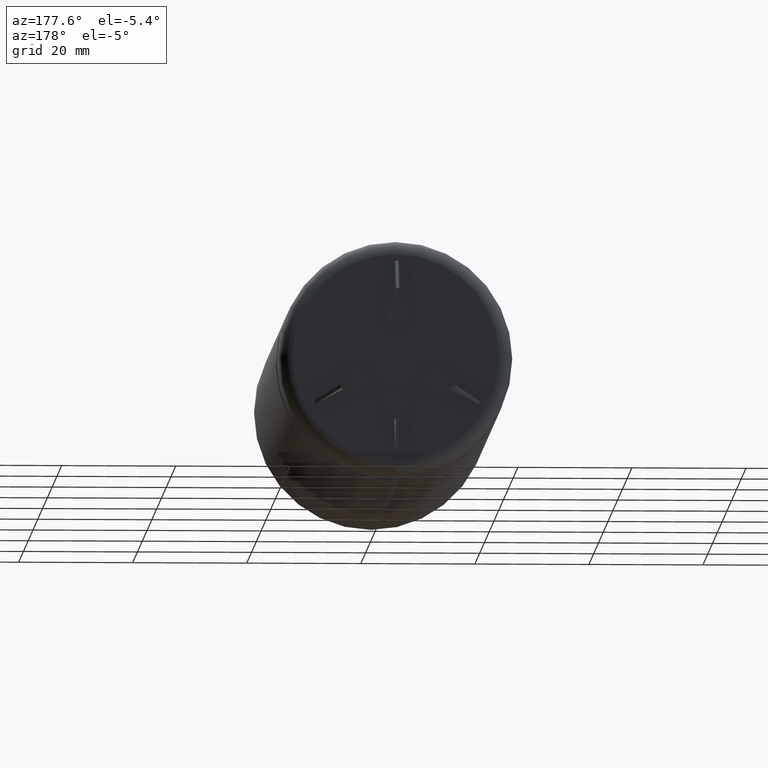
[diagram: clean part render]
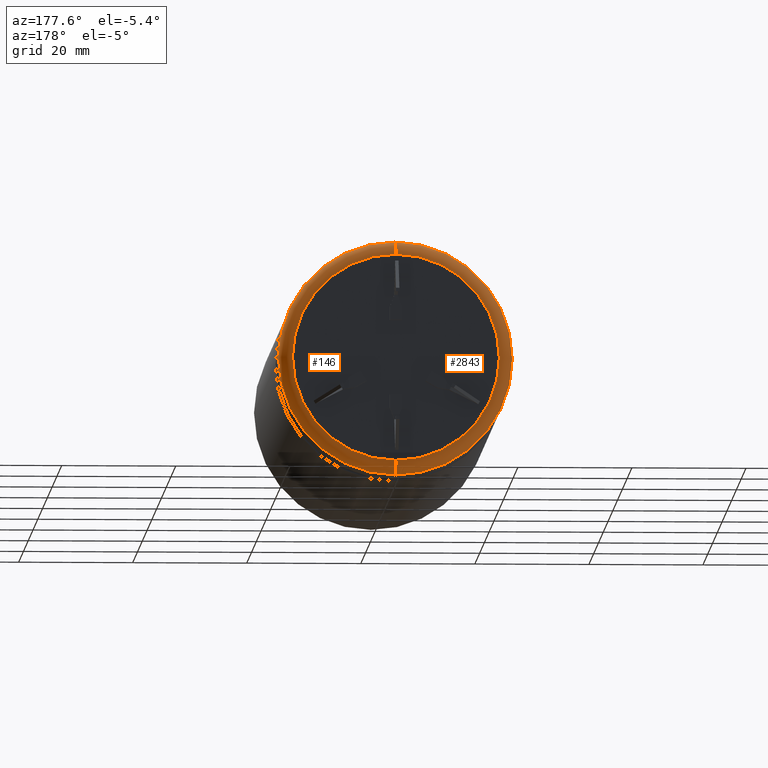
[diagram: same view with one multi-face feature highlighted, each face labeled with its STEP entity id]
A machine part, auxiliary view. The highlighted faces form ONE feature: a constant-radius fillet chain: 2 tangent blend faces with common blend radius 2.3616 mm. The faces share edges in the B-rep.
Their STEP definitions:
[1] entity #146 (Torus):
#146 = ADVANCED_FACE ( 'NONE', ( #1707 ), #1526, .T. ) ;
#175 = AXIS2_PLACEMENT_3D ( 'NONE', #545, #1696, #1346 ) ;
#377 = ORIENTED_EDGE ( 'NONE', *, *, #405, .F. ) ;
#405 = EDGE_CURVE ( 'NONE', #4133, #2544, #4634, .T. ) ;
#408 = CIRCLE ( 'NONE', #1308, 2.361599999999998400 ) ;
#545 = CARTESIAN_POINT ( 'NONE',  ( 2.221313350165435200E-015, 104.6383999999999900, -18.13839999999999700 ) ) ;
#669 = ORIENTED_EDGE ( 'NONE', *, *, #3263, .F. ) ;
#833 = DIRECTION ( 'NONE',  ( 0.0000000000000000000, 0.0000000000000000000, 1.000000000000000000 ) ) ;
#870 = AXIS2_PLACEMENT_3D ( 'NONE', #3249, #3941, #1787 ) ;
#1308 = AXIS2_PLACEMENT_3D ( 'NONE', #3535, #2043, #4169 ) ;
#1335 = DIRECTION ( 'NONE',  ( 0.0000000000000000000, 1.000000000000000000, 0.0000000000000000000 ) ) ;
#1346 = DIRECTION ( 'NONE',  ( 1.224646799147353700E-016, 0.0000000000000000000, -1.000000000000000000 ) ) ;
#1526 = TOROIDAL_SURFACE ( 'NONE', #3695, 18.13839999999999700, 2.361600000000000100 ) ;
#1696 = DIRECTION ( 'NONE',  ( 1.000000000000000000, -0.0000000000000000000, 1.224646799147353200E-016 ) ) ;
#1707 = FACE_OUTER_BOUND ( 'NONE', #2494, .T. ) ;
#1787 = DIRECTION ( 'NONE',  ( 0.0000000000000000000, 0.0000000000000000000, 1.000000000000000000 ) ) ;
#2017 = DIRECTION ( 'NONE',  ( 0.0000000000000000000, 0.0000000000000000000, 1.000000000000000000 ) ) ;
#2043 = DIRECTION ( 'NONE',  ( -1.000000000000000000, 0.0000000000000000000, 0.0000000000000000000 ) ) ;
#2265 = CARTESIAN_POINT ( 'NONE',  ( 2.510525938252074500E-015, 104.6383999999999900, 20.50000000000000000 ) ) ;
#2420 = CIRCLE ( 'NONE', #870, 20.50000000000000000 ) ;
#2494 = EDGE_LOOP ( 'NONE', ( #2802, #4267, #377, #669 ) ) ;
#2544 = VERTEX_POINT ( 'NONE', #3907 ) ;
#2580 = VERTEX_POINT ( 'NONE', #4202 ) ;
#2802 = ORIENTED_EDGE ( 'NONE', *, *, #3401, .F. ) ;
#2898 = EDGE_CURVE ( 'NONE', #2580, #2544, #4655, .T. ) ;
#2976 = DIRECTION ( 'NONE',  ( 0.0000000000000000000, 1.000000000000000000, 0.0000000000000000000 ) ) ;
#3249 = CARTESIAN_POINT ( 'NONE',  ( 0.0000000000000000000, 104.6383999999999900, 0.0000000000000000000 ) ) ;
#3263 = EDGE_CURVE ( 'NONE', #4014, #4133, #408, .T. ) ;
#3341 = CARTESIAN_POINT ( 'NONE',  ( 0.0000000000000000000, 104.6383999999999900, 0.0000000000000000000 ) ) ;
#3401 = EDGE_CURVE ( 'NONE', #2580, #4014, #2420, .T. ) ;
#3500 = CARTESIAN_POINT ( 'NONE',  ( 0.0000000000000000000, 107.0000000000000000, 0.0000000000000000000 ) ) ;
#3535 = CARTESIAN_POINT ( 'NONE',  ( 0.0000000000000000000, 104.6383999999999900, 18.13839999999999700 ) ) ;
#3695 = AXIS2_PLACEMENT_3D ( 'NONE', #3341, #2976, #833 ) ;
#3893 = CARTESIAN_POINT ( 'NONE',  ( 0.0000000000000000000, 107.0000000000000000, 18.13839999999999700 ) ) ;
#3907 = CARTESIAN_POINT ( 'NONE',  ( 2.365919644208754400E-015, 107.0000000000000000, -18.13839999999999700 ) ) ;
#3941 = DIRECTION ( 'NONE',  ( -0.0000000000000000000, -1.000000000000000000, -0.0000000000000000000 ) ) ;
#4014 = VERTEX_POINT ( 'NONE', #2265 ) ;
#4133 = VERTEX_POINT ( 'NONE', #3893 ) ;
#4169 = DIRECTION ( 'NONE',  ( 0.0000000000000000000, 0.0000000000000000000, 1.000000000000000000 ) ) ;
#4202 = CARTESIAN_POINT ( 'NONE',  ( 0.0000000000000000000, 104.6383999999999900, -20.50000000000000000 ) ) ;
#4267 = ORIENTED_EDGE ( 'NONE', *, *, #2898, .T. ) ;
#4469 = AXIS2_PLACEMENT_3D ( 'NONE', #3500, #1335, #2017 ) ;
#4634 = CIRCLE ( 'NONE', #4469, 18.13839999999999700 ) ;
#4655 = CIRCLE ( 'NONE', #175, 2.361599999999998400 ) ;
[2] entity #2843 (Torus):
#142 = AXIS2_PLACEMENT_3D ( 'NONE', #3313, #2599, #2589 ) ;
#175 = AXIS2_PLACEMENT_3D ( 'NONE', #545, #1696, #1346 ) ;
#408 = CIRCLE ( 'NONE', #1308, 2.361599999999998400 ) ;
#443 = DIRECTION ( 'NONE',  ( 0.0000000000000000000, 1.000000000000000000, 0.0000000000000000000 ) ) ;
#545 = CARTESIAN_POINT ( 'NONE',  ( 2.221313350165435200E-015, 104.6383999999999900, -18.13839999999999700 ) ) ;
#564 = EDGE_CURVE ( 'NONE', #2544, #4133, #1637, .T. ) ;
#644 = TOROIDAL_SURFACE ( 'NONE', #1146, 18.13839999999999700, 2.361600000000000100 ) ;
#759 = EDGE_LOOP ( 'NONE', ( #1165, #1801, #2257, #2332 ) ) ;
#809 = AXIS2_PLACEMENT_3D ( 'NONE', #2988, #443, #3399 ) ;
#962 = DIRECTION ( 'NONE',  ( 0.0000000000000000000, 1.000000000000000000, 0.0000000000000000000 ) ) ;
#1146 = AXIS2_PLACEMENT_3D ( 'NONE', #3898, #962, #1333 ) ;
#1165 = ORIENTED_EDGE ( 'NONE', *, *, #2898, .F. ) ;
#1308 = AXIS2_PLACEMENT_3D ( 'NONE', #3535, #2043, #4169 ) ;
#1333 = DIRECTION ( 'NONE',  ( 0.0000000000000000000, 0.0000000000000000000, 1.000000000000000000 ) ) ;
#1346 = DIRECTION ( 'NONE',  ( 1.224646799147353700E-016, 0.0000000000000000000, -1.000000000000000000 ) ) ;
#1637 = CIRCLE ( 'NONE', #809, 18.13839999999999700 ) ;
#1696 = DIRECTION ( 'NONE',  ( 1.000000000000000000, -0.0000000000000000000, 1.224646799147353200E-016 ) ) ;
#1801 = ORIENTED_EDGE ( 'NONE', *, *, #3136, .F. ) ;
#1882 = CIRCLE ( 'NONE', #142, 20.50000000000000000 ) ;
#2043 = DIRECTION ( 'NONE',  ( -1.000000000000000000, 0.0000000000000000000, 0.0000000000000000000 ) ) ;
#2257 = ORIENTED_EDGE ( 'NONE', *, *, #3263, .T. ) ;
#2265 = CARTESIAN_POINT ( 'NONE',  ( 2.510525938252074500E-015, 104.6383999999999900, 20.50000000000000000 ) ) ;
#2332 = ORIENTED_EDGE ( 'NONE', *, *, #564, .F. ) ;
#2544 = VERTEX_POINT ( 'NONE', #3907 ) ;
#2551 = FACE_OUTER_BOUND ( 'NONE', #759, .T. ) ;
#2580 = VERTEX_POINT ( 'NONE', #4202 ) ;
#2589 = DIRECTION ( 'NONE',  ( 0.0000000000000000000, 0.0000000000000000000, 1.000000000000000000 ) ) ;
#2599 = DIRECTION ( 'NONE',  ( -0.0000000000000000000, -1.000000000000000000, -0.0000000000000000000 ) ) ;
#2843 = ADVANCED_FACE ( 'NONE', ( #2551 ), #644, .T. ) ;
#2898 = EDGE_CURVE ( 'NONE', #2580, #2544, #4655, .T. ) ;
#2988 = CARTESIAN_POINT ( 'NONE',  ( 0.0000000000000000000, 107.0000000000000000, 0.0000000000000000000 ) ) ;
#3136 = EDGE_CURVE ( 'NONE', #4014, #2580, #1882, .T. ) ;
#3263 = EDGE_CURVE ( 'NONE', #4014, #4133, #408, .T. ) ;
#3313 = CARTESIAN_POINT ( 'NONE',  ( 0.0000000000000000000, 104.6383999999999900, 0.0000000000000000000 ) ) ;
#3399 = DIRECTION ( 'NONE',  ( 0.0000000000000000000, 0.0000000000000000000, 1.000000000000000000 ) ) ;
#3535 = CARTESIAN_POINT ( 'NONE',  ( 0.0000000000000000000, 104.6383999999999900, 18.13839999999999700 ) ) ;
#3893 = CARTESIAN_POINT ( 'NONE',  ( 0.0000000000000000000, 107.0000000000000000, 18.13839999999999700 ) ) ;
#3898 = CARTESIAN_POINT ( 'NONE',  ( 0.0000000000000000000, 104.6383999999999900, 0.0000000000000000000 ) ) ;
#3907 = CARTESIAN_POINT ( 'NONE',  ( 2.365919644208754400E-015, 107.0000000000000000, -18.13839999999999700 ) ) ;
#4014 = VERTEX_POINT ( 'NONE', #2265 ) ;
#4133 = VERTEX_POINT ( 'NONE', #3893 ) ;
#4169 = DIRECTION ( 'NONE',  ( 0.0000000000000000000, 0.0000000000000000000, 1.000000000000000000 ) ) ;
#4202 = CARTESIAN_POINT ( 'NONE',  ( 0.0000000000000000000, 104.6383999999999900, -20.50000000000000000 ) ) ;
#4655 = CIRCLE ( 'NONE', #175, 2.361599999999998400 ) ;